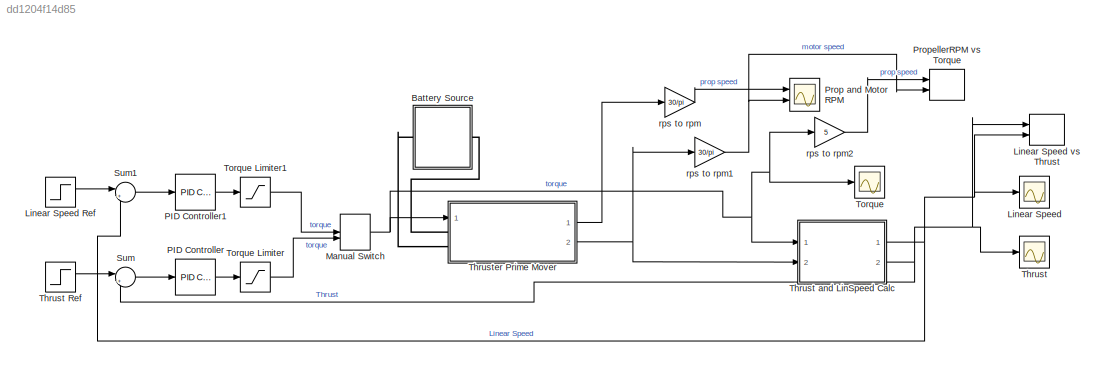
MODEL slx_dd1204f14d85
KIND model
CONFIG AbsTol = auto
CONFIG EnableMultiTasking = off
CONFIG FixedStep = auto
CONFIG MaxStep = auto
CONFIG MinStep = auto
CONFIG RelTol = 1e-3
CONFIG SampleTimeConstraint = Unconstrained
CONFIG SolverName = VariableStepAuto
CONFIG StartTime = 0.0
CONFIG StopTime = 30.0
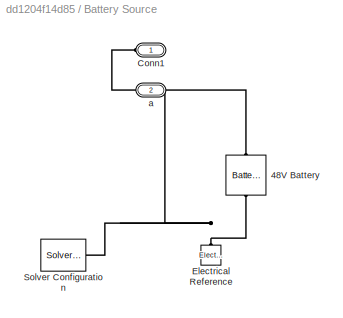
BLOCK [SubSystem] Battery Source
  NameLocation = top
  Ports = [0, 0, 0, 0, 0, 1, 1]
  RequestExecContextInheritance = off
BLOCK [Reference] Battery Source/48V Battery  REF=ee_lib/Sources/Battery
  NameLocation = right
  Ports = [0, 0, 0, 0, 0, 1, 1]
  SourceBlock = ee_lib/Sources/Battery
  SourceProductBaseCode = PS
  SourceType = Battery
BLOCK [PMIOPort] Battery Source/Conn1
  Side = Left
BLOCK [Reference] Battery Source/Electrical Reference  REF=fl_lib/Electrical/Electrical Elements/Electrical Reference
  NameLocation = right
  Ports = [0, 0, 0, 0, 0, 1]
  SourceBlock = fl_lib/Electrical/Electrical Elements/Electrical Reference
  SourceProductBaseCode = SS
  SourceType = Electrical Reference
BLOCK [Reference] Battery Source/Solver Configuration  REF=nesl_utility/Solver
Configuration
  Ports = [0, 0, 0, 0, 0, 0, 1]
  SourceBlock = nesl_utility/Solver\nConfiguration
  SourceProductBaseCode = PW,SS
  SourceType = Solver\nConfiguration
BLOCK [PMIOPort] Battery Source/a
  Port = 2
  Side = Right
BLOCK [Scope] Linear Speed
  Floating = off
  NumInputPorts = 1
  Ports = [1]
  ScopeSpecificationString = Simulink.scopes.TimeScopeBlockCfg('CurrentConfiguration', extmgr.ConfigurationSet(extmgr.Configuration('Core','General UI',true),extmgr.Configuration('Core','Source UI',true),extmgr.Configuration('Sources','WiredSimulink',true,'DataLoggingVariableName','ScopeData2'),extmgr.Configuration('Visuals','Time Domain',true,'SerializedDisplays',{struct('MinYLimReal','-0.13817','MaxYLimReal','1.24352','YLab...<+1402ch>
BLOCK [Step] Linear Speed Ref
  After = 3
  SampleTime = 0
BLOCK [Record] Linear Speed vs Thrust
  CompatibilityTag = XY
  FileSettingsInternal = {"entries":[{"content":{"excelSettings":{"content":{},"type":"Streamout.ExcelSettings"}},"type":"Streamout.FileSettingStorage","uuid":"f38cdbd6-b5c5-4525-af82-986570d2f1bb"}],"packageUris":["http://schema.mathworks.com/mf0/streamout_blocks/R2020a"],"version":"1.0"}
  Layout = [1 1]
  Ports = [2]
  SignalsInternal = {"entries":[{"content":{"signals":[{"content":{"blockPath":["Propeller_Control_Prime_Mover/Linear Speed vs Thrust"],"channel":[],"dimensions":[1],"domain":"Propeller_Control_Prime_Mover/Linear Speed vs Thrust","lineColor":"#a2142f","plots":[1],"port":1,"sid":[""],"signalID":332,"signalName":"Thrust"},"type":"RecordBlkView.Signal","uuid":"575c3137-ab97-410f-b3d3-826d395c1239"},{"content":{"blockPat...<+505ch>
  VisualizationBindings = {"xyplotplugin":{"info":[{"series":[{"bindingParametersList":[{"parameter":"X-Axis","signalID":332,"signalName":"Thrust"},{"parameter":"Y-Axis","signalID":336,"signalName":"Linear Speed"}],"seriesID":64183}],"subplotID":1}]}}
BLOCK [ManualSwitch] Manual Switch
  CurrentSetting = 0
BLOCK [Reference] PID Controller  REF=slpidlib/PID Controller
  Ports = [1, 1]
  SourceBlock = slpidlib/PID Controller
  SourceProductBaseCode = SL
  SourceType = PID 1dof
BLOCK [Reference] PID Controller1  REF=slpidlib/PID Controller
  Ports = [1, 1]
  SourceBlock = slpidlib/PID Controller
  SourceProductBaseCode = SL
  SourceType = PID 1dof
BLOCK [Scope] Prop and Motor RPM
  Floating = off
  NumInputPorts = 2
  Ports = [2]
  ScopeSpecificationString = Simulink.scopes.TimeScopeBlockCfg('CurrentConfiguration', extmgr.ConfigurationSet(extmgr.Configuration('Core','General UI',true),extmgr.Configuration('Core','Source UI',true),extmgr.Configuration('Sources','WiredSimulink',true),extmgr.Configuration('Visuals','Time Domain',true,'SerializedDisplays',{struct('MinYLimReal','-21.13884','MaxYLimReal','190.24955','YLabelReal','','MinYLimMag','0.00000','M...<+1387ch>
BLOCK [Record] PropellerRPM vs Torque
  CompatibilityTag = XY
  FileSettingsInternal = {"entries":[{"content":{"excelSettings":{"content":{},"type":"Streamout.ExcelSettings"}},"type":"Streamout.FileSettingStorage","uuid":"e7f1eaa3-e328-4bb8-9999-0087dc1a7fd9"}],"packageUris":["http://schema.mathworks.com/mf0/streamout_blocks/R2020a"],"version":"1.0"}
  Layout = [1 1]
  Ports = [2]
  SignalsInternal = {"entries":[{"content":{"signals":[{"content":{"blockPath":["Propeller_Control_Prime_Mover/PropellerRPM vs Torque"],"channel":[],"dimensions":[1],"domain":"Propeller_Control_Prime_Mover/PropellerRPM vs Torque","lineColor":"#64d413","plots":[],"port":1,"sid":[""],"signalID":340,"signalName":"prop speed"},"type":"RecordBlkView.Signal","uuid":"83d94086-b276-4ada-afda-b43e66d6f884"},{"content":{"block...<+506ch>
  VisualizationBindings = {"xyplotplugin":{"info":[{"series":[{"bindingParametersList":[{"parameter":"X-Axis","signalID":9,"signalName":"prop speed"},{"parameter":"Y-Axis","signalID":12,"signalName":"motor speed"}],"seriesID":39395}],"subplotID":1}]}}
BLOCK [Sum] Sum
  Inputs = |+-
  Ports = [2, 1]
BLOCK [Sum] Sum1
  Inputs = |+-
  Ports = [2, 1]
BLOCK [Scope] Thrust
  Floating = off
  NumInputPorts = 1
  Ports = [1]
  ScopeSpecificationString = Simulink.scopes.TimeScopeBlockCfg('CurrentConfiguration', extmgr.ConfigurationSet(extmgr.Configuration('Core','General UI',true),extmgr.Configuration('Core','Source UI',true),extmgr.Configuration('Sources','WiredSimulink',true,'DataLoggingVariableName','ScopeData1'),extmgr.Configuration('Visuals','Time Domain',true,'SerializedDisplays',{struct('MinYLimReal','-12.25','MaxYLimReal','110.25','YLabelR...<+1386ch>
BLOCK [Step] Thrust Ref
  After = 98
  SampleTime = 0
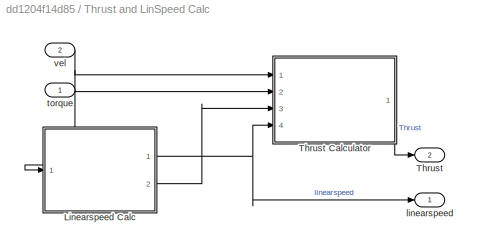
BLOCK [SubSystem] Thrust and LinSpeed Calc
  Ports = [2, 2]
  RequestExecContextInheritance = off
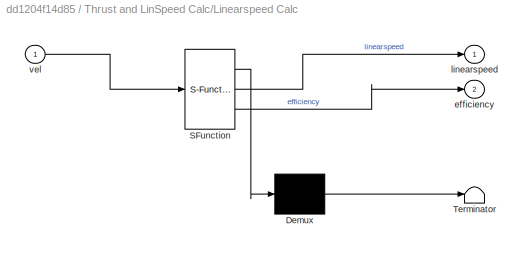
BLOCK [SubSystem] Thrust and LinSpeed Calc/Linearspeed Calc
  ErrorFcn = Stateflow.Translate.translate
  PermitHierarchicalResolution = ExplicitOnly
  Ports = [1, 2]
  RequestExecContextInheritance = off
  SFBlockType = MATLAB Function
  TreatAsAtomicUnit = on
BLOCK [Demux] Thrust and LinSpeed Calc/Linearspeed Calc/ Demux 
  Outputs = 1
  Ports = [1, 1]
BLOCK [S-Function] Thrust and LinSpeed Calc/Linearspeed Calc/ SFunction 
  EnableBusSupport = on
  FunctionName = sf_sfun
  PortCounts = [1 3]
  Ports = [1, 3]
  SFcnIsStateOwnerBlock = off
  SFunctionDeploymentMode = off
  Tag = Stateflow S-Function 1
BLOCK [Terminator] Thrust and LinSpeed Calc/Linearspeed Calc/ Terminator 
BLOCK [Outport] Thrust and LinSpeed Calc/Linearspeed Calc/efficiency
  Port = 2
BLOCK [Outport] Thrust and LinSpeed Calc/Linearspeed Calc/linearspeed
BLOCK [Inport] Thrust and LinSpeed Calc/Linearspeed Calc/vel
BLOCK [Outport] Thrust and LinSpeed Calc/Thrust
  Port = 2
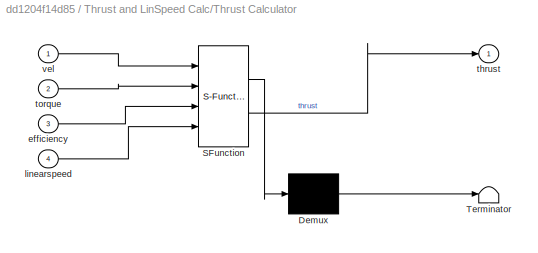
BLOCK [SubSystem] Thrust and LinSpeed Calc/Thrust Calculator
  ErrorFcn = Stateflow.Translate.translate
  PermitHierarchicalResolution = ExplicitOnly
  Ports = [4, 1]
  RequestExecContextInheritance = off
  SFBlockType = MATLAB Function
  TreatAsAtomicUnit = on
BLOCK [Demux] Thrust and LinSpeed Calc/Thrust Calculator/ Demux 
  Outputs = 1
  Ports = [1, 1]
BLOCK [S-Function] Thrust and LinSpeed Calc/Thrust Calculator/ SFunction 
  EnableBusSupport = on
  FunctionName = sf_sfun
  PortCounts = [4 2]
  Ports = [4, 2]
  SFcnIsStateOwnerBlock = off
  SFunctionDeploymentMode = off
  Tag = Stateflow S-Function 2
BLOCK [Terminator] Thrust and LinSpeed Calc/Thrust Calculator/ Terminator 
BLOCK [Inport] Thrust and LinSpeed Calc/Thrust Calculator/efficiency
  Port = 3
BLOCK [Inport] Thrust and LinSpeed Calc/Thrust Calculator/linearspeed
  Port = 4
BLOCK [Outport] Thrust and LinSpeed Calc/Thrust Calculator/thrust
BLOCK [Inport] Thrust and LinSpeed Calc/Thrust Calculator/torque
  Port = 2
BLOCK [Inport] Thrust and LinSpeed Calc/Thrust Calculator/vel
BLOCK [Outport] Thrust and LinSpeed Calc/linearspeed
BLOCK [Inport] Thrust and LinSpeed Calc/torque
BLOCK [Inport] Thrust and LinSpeed Calc/vel
  Port = 2
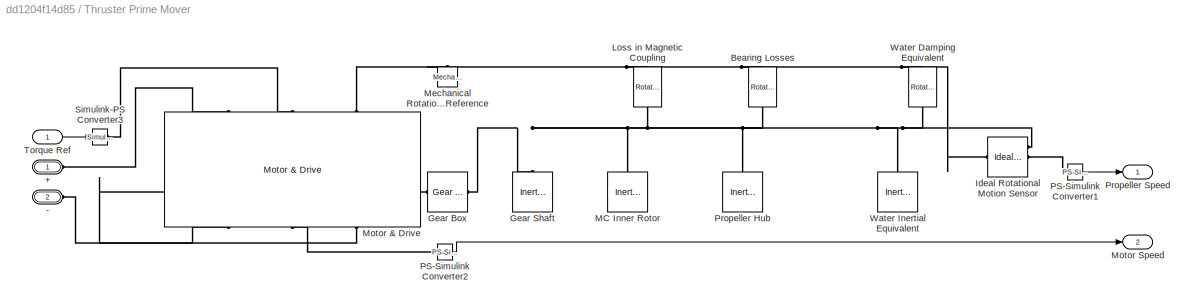
BLOCK [SubSystem] Thruster Prime Mover
  PortSchema = {"entries":[{"content":{"sides":[{"content":{"connectorIds":["LConn1","In1","LConn2"]},"type":"ConnectorPlacement.EquallySpacedRectSide","uuid":"b491ab2f-3c91-4c99-a87c-c51358079dd3"},{"content":{"connectorIds":["Out1","Out2"],"side":"RIGHT"},"type":"ConnectorPlacement.EquallySpacedRectSide","uuid":"68efad03-1b86-4427-b220-44990910d7ff"},{"content":{"connectorIds":[],"side":"TOP"},"type":"Connecto...<+265ch>
  Ports = [1, 2, 0, 0, 0, 2]
  RequestExecContextInheritance = off
BLOCK [PMIOPort] Thruster Prime Mover/+
  Side = Left
BLOCK [PMIOPort] Thruster Prime Mover/-
  Port = 2
  Side = Left
BLOCK [Reference] Thruster Prime Mover/Bearing Losses  REF=fl_lib/Mechanical/Rotational Elements/Rotational Damper
  NameLocation = left
  Ports = [0, 0, 0, 0, 0, 1, 1]
  SourceBlock = fl_lib/Mechanical/Rotational Elements/Rotational Damper
  SourceProductBaseCode = SS
  SourceType = Rotational Damper
BLOCK [Reference] Thruster Prime Mover/Gear Box  REF=fl_lib/Mechanical/Mechanisms/Gear Box
  Ports = [0, 0, 0, 0, 0, 1, 1]
  SourceBlock = fl_lib/Mechanical/Mechanisms/Gear Box
  SourceProductBaseCode = SS
  SourceType = Gear Box
BLOCK [Reference] Thruster Prime Mover/Gear Shaft  REF=fl_lib/Mechanical/Rotational Elements/Inertia
  NameLocation = right
  Ports = [0, 0, 0, 0, 0, 1]
  SourceBlock = fl_lib/Mechanical/Rotational Elements/Inertia
  SourceProductBaseCode = SS
  SourceType = Inertia
BLOCK [Reference] Thruster Prime Mover/Ideal Rotational Motion Sensor  REF=fl_lib/Mechanical/Mechanical Sensors/Ideal Rotational
Motion Sensor
  Ports = [0, 0, 0, 0, 0, 1, 3]
  SourceBlock = fl_lib/Mechanical/Mechanical Sensors/Ideal Rotational\nMotion Sensor
  SourceProductBaseCode = SS
  SourceType = Ideal Rotational\nMotion Sensor
BLOCK [Reference] Thruster Prime Mover/Loss in Magnetic Coupling  REF=fl_lib/Mechanical/Rotational Elements/Rotational Damper
  NameLocation = left
  Ports = [0, 0, 0, 0, 0, 1, 1]
  SourceBlock = fl_lib/Mechanical/Rotational Elements/Rotational Damper
  SourceProductBaseCode = SS
  SourceType = Rotational Damper
BLOCK [Reference] Thruster Prime Mover/MC Inner Rotor  REF=fl_lib/Mechanical/Rotational Elements/Inertia
  NameLocation = right
  Ports = [0, 0, 0, 0, 0, 1]
  SourceBlock = fl_lib/Mechanical/Rotational Elements/Inertia
  SourceProductBaseCode = SS
  SourceType = Inertia
BLOCK [Reference] Thruster Prime Mover/Mechanical Rotational Reference  REF=fl_lib/Mechanical/Rotational Elements/Mechanical
Rotational Reference
  NameLocation = right
  Ports = [0, 0, 0, 0, 0, 1]
  SourceBlock = fl_lib/Mechanical/Rotational Elements/Mechanical\nRotational Reference
  SourceProductBaseCode = SS
  SourceType = Mechanical\nRotational Reference
BLOCK [Reference] Thruster Prime Mover/Motor & Drive  REF=sdl_lib/Engines & Motors/Motor & Drive
  NameLocation = right
  Ports = [0, 0, 0, 0, 0, 3, 3]
  SourceBlock = sdl_lib/Engines & Motors/Motor & Drive
  SourceProductBaseCode = LD
  SourceType = Motor & Drive
BLOCK [Outport] Thruster Prime Mover/Motor Speed
  Port = 2
BLOCK [Reference] Thruster Prime Mover/PS-Simulink Converter1  REF=nesl_utility/PS-Simulink
Converter
  Ports = [0, 1, 0, 0, 0, 1]
  SourceBlock = nesl_utility/PS-Simulink\nConverter
  SourceProductBaseCode = PW,SS
  SourceType = PS-Simulink\nConverter
BLOCK [Reference] Thruster Prime Mover/PS-Simulink Converter2  REF=nesl_utility/PS-Simulink
Converter
  Ports = [0, 1, 0, 0, 0, 1]
  SourceBlock = nesl_utility/PS-Simulink\nConverter
  SourceProductBaseCode = PW,SS
  SourceType = PS-Simulink\nConverter
BLOCK [Reference] Thruster Prime Mover/Propeller Hub  REF=fl_lib/Mechanical/Rotational Elements/Inertia
  NameLocation = right
  Ports = [0, 0, 0, 0, 0, 1]
  SourceBlock = fl_lib/Mechanical/Rotational Elements/Inertia
  SourceProductBaseCode = SS
  SourceType = Inertia
BLOCK [Outport] Thruster Prime Mover/Propeller Speed
BLOCK [Reference] Thruster Prime Mover/Simulink-PS Converter3  REF=nesl_utility/Simulink-PS
Converter
  Ports = [1, 0, 0, 0, 0, 0, 1]
  SourceBlock = nesl_utility/Simulink-PS\nConverter
  SourceProductBaseCode = PW,SS
  SourceType = Simulink-PS\nConverter
BLOCK [Inport] Thruster Prime Mover/Torque Ref
BLOCK [Reference] Thruster Prime Mover/Water Damping Equivalent  REF=fl_lib/Mechanical/Rotational Elements/Rotational Damper
  NameLocation = left
  Ports = [0, 0, 0, 0, 0, 1, 1]
  SourceBlock = fl_lib/Mechanical/Rotational Elements/Rotational Damper
  SourceProductBaseCode = SS
  SourceType = Rotational Damper
BLOCK [Reference] Thruster Prime Mover/Water Inertial Equivalent  REF=fl_lib/Mechanical/Rotational Elements/Inertia
  NameLocation = right
  Ports = [0, 0, 0, 0, 0, 1]
  SourceBlock = fl_lib/Mechanical/Rotational Elements/Inertia
  SourceProductBaseCode = SS
  SourceType = Inertia
BLOCK [Scope] Torque
  Floating = off
  NumInputPorts = 1
  Ports = [1]
  ScopeSpecificationString = Simulink.scopes.TimeScopeBlockCfg('CurrentConfiguration', extmgr.ConfigurationSet(extmgr.Configuration('Core','General UI',true),extmgr.Configuration('Core','Source UI',true),extmgr.Configuration('Sources','WiredSimulink',true,'DataLoggingVariableName','ScopeData3'),extmgr.Configuration('Visuals','Time Domain',true,'SerializedDisplays',{struct('MinYLimReal','-0.625','MaxYLimReal','5.625','YLabelRe...<+1353ch>
BLOCK [Saturate] Torque Limiter
  LowerLimit = 0
  UpperLimit = 5
BLOCK [Saturate] Torque Limiter1
  LowerLimit = 0
  UpperLimit = 5
BLOCK [Gain] rps to rpm
  Gain = 30/pi
BLOCK [Gain] rps to rpm1
  Gain = 30/pi
BLOCK [Gain] rps to rpm2
  Gain = 5
LINE Linear Speed Ref:1 -> Sum1:1
NET Manual Switch:1 -> Thrust and LinSpeed Calc:1, Thruster Prime Mover:1, Torque:1, rps to rpm2:1
LINE PID Controller1:1 -> Torque Limiter1:1
LINE PID Controller:1 -> Torque Limiter:1
LINE Sum1:1 -> PID Controller1:1
LINE Sum:1 -> PID Controller:1
LINE Thrust Ref:1 -> Sum:1
NET Thrust and LinSpeed Calc/Linearspeed Calc:1 -> Thrust and LinSpeed Calc/Thrust Calculator:4, Thrust and LinSpeed Calc/linearspeed:1
LINE Thrust and LinSpeed Calc/Linearspeed Calc:2 -> Thrust and LinSpeed Calc/Thrust Calculator:3
LINE Thrust and LinSpeed Calc/Thrust Calculator:1 -> Thrust and LinSpeed Calc/Thrust:1
LINE Thrust and LinSpeed Calc/torque:1 -> Thrust and LinSpeed Calc/Thrust Calculator:2
NET Thrust and LinSpeed Calc/vel:1 -> Thrust and LinSpeed Calc/Linearspeed Calc:1, Thrust and LinSpeed Calc/Thrust Calculator:1
NET Thrust and LinSpeed Calc:1 -> Linear Speed vs Thrust:2, Linear Speed:1, Sum1:2
NET Thrust and LinSpeed Calc:2 -> Linear Speed vs Thrust:1, Sum:2, Thrust:1
LINE Thruster Prime Mover/PS-Simulink Converter1:1 -> Thruster Prime Mover/Propeller Speed:1
LINE Thruster Prime Mover/PS-Simulink Converter2:1 -> Thruster Prime Mover/Motor Speed:1
LINE Thruster Prime Mover/Torque Ref:1 -> Thruster Prime Mover/Simulink-PS Converter3:1
LINE Thruster Prime Mover:1 -> rps to rpm:1
NET Thruster Prime Mover:2 -> Thrust and LinSpeed Calc:2, rps to rpm1:1
LINE Torque Limiter1:1 -> Manual Switch:1
LINE Torque Limiter:1 -> Manual Switch:2
NET rps to rpm1:1 -> Prop and Motor RPM:2, PropellerRPM vs Torque:2
LINE rps to rpm2:1 -> PropellerRPM vs Torque:1
LINE rps to rpm:1 -> Prop and Motor RPM:1
PLINE Battery Source/48V Battery:LConn1 -- Battery Source/Conn1:RConn1
PNET net1: Battery Source/48V Battery:RConn1 -- Battery Source/Electrical Reference:LConn1 -- Battery Source/Solver Configuration:RConn1 -- Battery Source/a:RConn1
PLINE Battery Source:LConn1 -- Thruster Prime Mover:LConn1
PLINE Battery Source:RConn1 -- Thruster Prime Mover:LConn2
PLINE Thruster Prime Mover/+:RConn1 -- Thruster Prime Mover/Motor & Drive:LConn1
PLINE Thruster Prime Mover/-:RConn1 -- Thruster Prime Mover/Motor & Drive:RConn1
PNET net2: Thruster Prime Mover/Bearing Losses:LConn1 -- Thruster Prime Mover/Ideal Rotational Motion Sensor:LConn1 -- Thruster Prime Mover/Loss in Magnetic Coupling:LConn1 -- Thruster Prime Mover/Mechanical Rotational Reference:LConn1 -- Thruster Prime Mover/Motor & Drive:LConn3 -- Thruster Prime Mover/Water Damping Equivalent:LConn1
PNET net3: Thruster Prime Mover/Bearing Losses:RConn1 -- Thruster Prime Mover/Gear Box:RConn1 -- Thruster Prime Mover/Gear Shaft:LConn1 -- Thruster Prime Mover/Ideal Rotational Motion Sensor:RConn1 -- Thruster Prime Mover/Loss in Magnetic Coupling:RConn1 -- Thruster Prime Mover/MC Inner Rotor:LConn1 -- Thruster Prime Mover/Propeller Hub:LConn1 -- Thruster Prime Mover/Water Damping Equivalent:RConn1 -- Thruster Prime Mover/Water Inertial Equivalent:LConn1
PLINE Thruster Prime Mover/Gear Box:LConn1 -- Thruster Prime Mover/Motor & Drive:RConn3
PLINE Thruster Prime Mover/Ideal Rotational Motion Sensor:RConn2 -- Thruster Prime Mover/PS-Simulink Converter1:LConn1
PLINE Thruster Prime Mover/Motor & Drive:LConn2 -- Thruster Prime Mover/Simulink-PS Converter3:RConn1
PLINE Thruster Prime Mover/Motor & Drive:RConn2 -- Thruster Prime Mover/PS-Simulink Converter2:LConn1
note: NET lines group one-source signal fan-out (src -> all destinations, sorted); 1:1 wires keep LINE; PNET lines group multi-terminal physical nets as a canonical sorted terminal list (undirected conserving connections); 2-terminal nets keep the pairwise PLINE form
CHART Thrust and LinSpeed Calc/Linearspeed Calc states=1 transitions=1
  STATE_LABEL 'eML_blk_kernel()'
  STATE_LABEL 'SCRIPT:\nfunction [linearspeed,efficiency] = fcn(vel)\npitch_angle= 27;\nprop_d=0.35;\npitch= tand(pitch_angle)*prop_d*pi;\nrpm=vel*30/pi;\nif(rpm<10)\n    efficiency=0.1;\nelseif(rpm<20)\n    efficiency=0.2;\nelseif(rpm<30)\n    efficiency=0.3; \nelseif(rpm<40)\n    efficiency=0.4;\nelseif(rpm<50)\n    efficiency=0.5;\nelseif(rpm<100)\n    efficiency=0.6;\nelse\n    efficiency=0.7;\nend\nlinearspeed=pitch*efficiency*...<+14ch>'
CHART Thrust and LinSpeed Calc/Thrust Calculator states=1 transitions=1
  STATE_LABEL 'eML_blk_kernel()'
  STATE_LABEL 'SCRIPT:\nfunction thrust = fcn(vel, torque,efficiency,linearspeed)\nthrust=vel*torque*efficiency/0.1+linearspeed;\nend\n\n\n'
CHART  states=0 transitions=0
CHART  states=0 transitions=0
